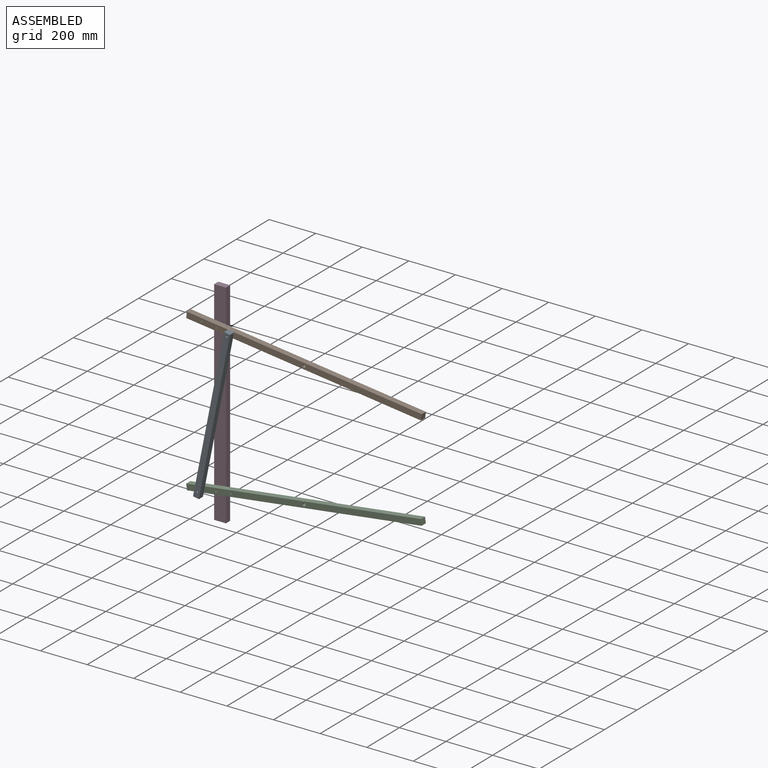
[diagram: assembled view]
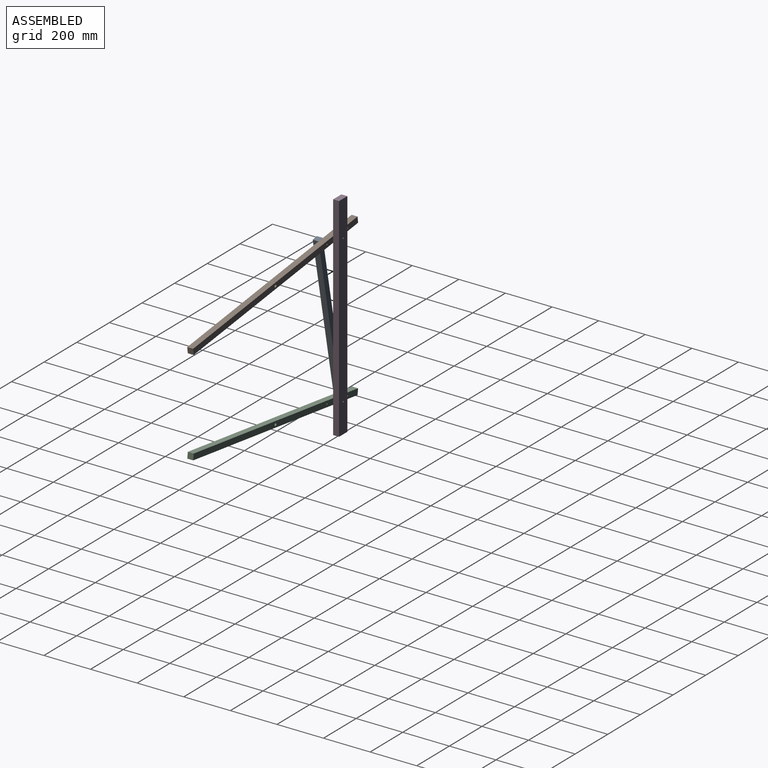
[diagram: assembled view, second angle]
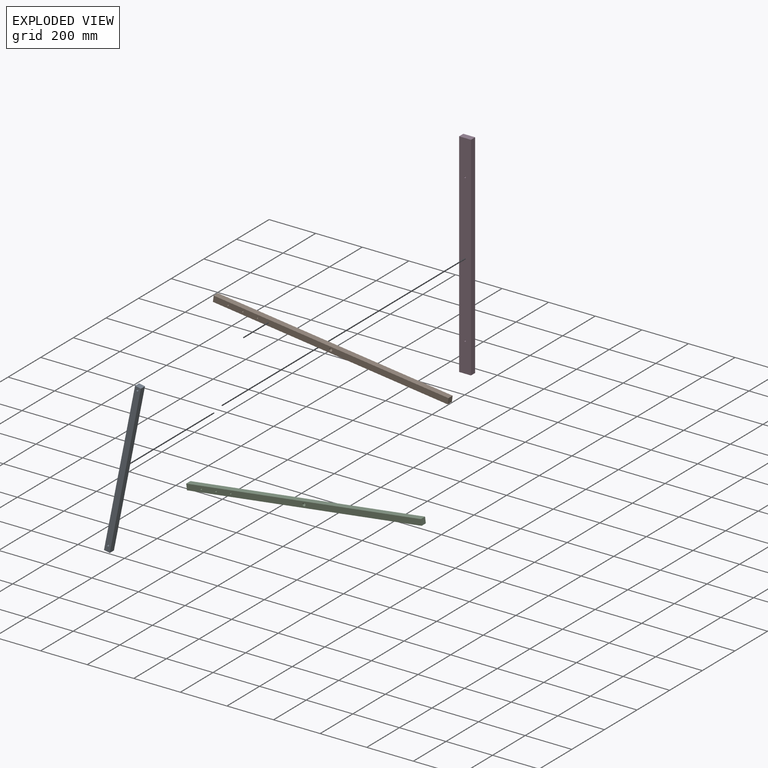
[diagram: exploded view]
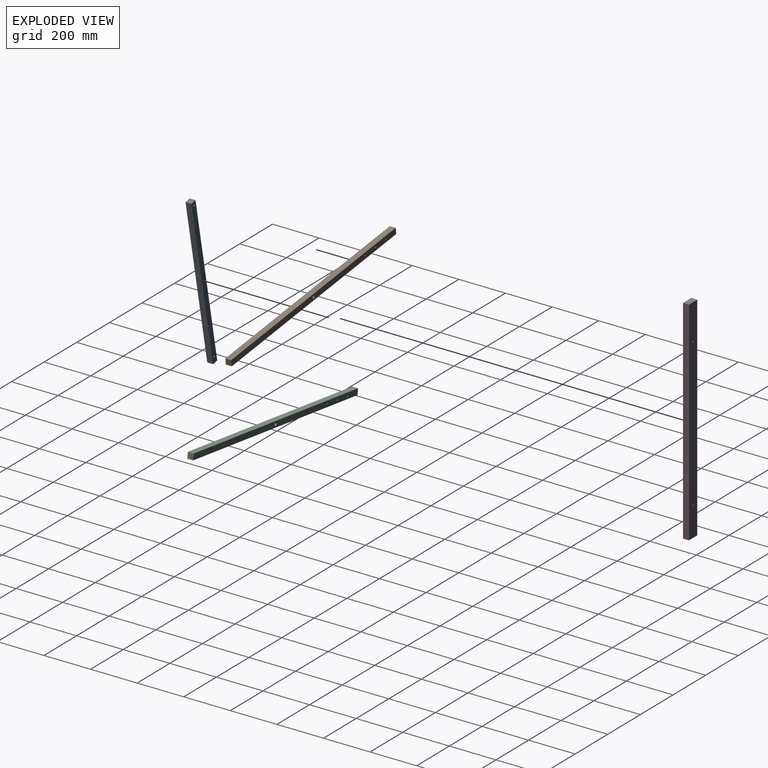
[diagram: exploded view, second angle]
ASSEMBLY  parts=4 mates=4
PART A: 8 faces, bbox 685.8x25.4x25.4 mm
  f0: plane 25.4x25.4mm, normal (-1,0,0), area 645.2mm2, adj f1,f4,f6,f7
  f1: plane 685.8x25.4mm, normal (0,-1,0), area 17419.3mm2, adj f0,f2,f6,f7
  f2: plane 25.4x25.4mm, normal (1,0,0), area 645.2mm2, adj f1,f4,f6,f7
  f3: cylinder r=4.22mm len=25.4mm, axis (0,0,-1), area 673.9mm2, adj f6,f7
  f4: plane 685.8x25.4mm, normal (0,1,0), area 17419.3mm2, adj f0,f2,f6,f7
  f5: cylinder r=4.35mm len=25.4mm, axis (0,0,-1), area 694.5mm2, adj f6,f7
  f6: plane 685.8x25.4mm, normal (0,0,1), area 17303.8mm2, adj f0,f1,f2,f3,f4,f5
  f7: plane 685.8x25.4mm, normal (0,0,-1), area 17303.8mm2, adj f0,f1,f2,f3,f4,f5
PART B: 10 faces, bbox 1016x25.4x25.4 mm
  f0: plane 25.4x25.4mm, normal (-1,0,0), area 645.2mm2, adj f1,f6,f8,f9
  f1: plane 1016x25.4mm, normal (0,-1,0), area 25806.4mm2, adj f0,f2,f8,f9
  f2: plane 25.4x25.4mm, normal (1,0,0), area 645.2mm2, adj f1,f6,f8,f9
  f3: cylinder r=3.17mm len=25.4mm, axis (0,0,-1), area 506.7mm2, adj f8,f9
  f4: cylinder r=3.17mm len=25.4mm, axis (0,0,-1), area 506.7mm2, adj f8,f9
  f5: cylinder r=3.17mm len=25.4mm, axis (0,0,-1), area 506.7mm2, adj f8,f9
  f6: plane 1016x25.4mm, normal (0,1,0), area 25806.4mm2, adj f0,f2,f8,f9
  f7: cylinder r=6.35mm len=25.4mm, axis (0,0,-1), area 1013.4mm2, adj f8,f9
  f8: plane 1016x25.4mm, normal (0,0,1), area 25584.7mm2, adj f0,f1,f2,f3,f4,f5,f6,f7
  f9: plane 1016x25.4mm, normal (0,0,-1), area 25584.7mm2, adj f0,f1,f2,f3,f4,f5,f6,f7
PART C: same geometry as B
PART D: 8 faces, bbox 50.8x25.4x914.4 mm
  f0: plane 914.4x25.4mm, normal (-1,0,0), area 23225.8mm2, adj f1,f3,f4,f5
  f1: plane 914.4x50.8mm, normal (0,-1,0), area 46388.2mm2, adj f0,f2,f4,f5,f6,f7
  f2: plane 914.4x25.4mm, normal (1,0,0), area 23225.8mm2, adj f1,f3,f4,f5
  f3: plane 914.4x50.8mm, normal (0,1,0), area 46388.2mm2, adj f0,f2,f4,f5,f6,f7
  f4: plane 50.8x25.4mm, normal (0,0,1), area 1290.3mm2, adj f0,f1,f2,f3
  f5: plane 50.8x25.4mm, normal (0,0,-1), area 1290.3mm2, adj f0,f1,f2,f3
  f6: cylinder r=3.17mm len=25.4mm, axis (0,-1,0), area 506.7mm2, adj f1,f3
  f7: cylinder r=3.17mm len=25.4mm, axis (0,-1,0), area 506.7mm2, adj f1,f3
PLACE A rot(axis=(0.65,-0.54,0.54),113.7deg) t=(-530.78,-18.76,81.66)mm
PLACE B rot(axis=(1,0.06,-0.06),90.2deg) t=(-602.01,6.64,760.3)mm
PLACE C rot(axis=(1,-0.06,0.06),90.2deg) t=(-598.71,6.64,92.85)mm
PLACE D t=(-499.82,6.64,-5.12)mm fixed
MATE revolute B.f5 <-> D.f6  axis (0,1,0) through (-474.42,6.64,756.88)mm
MATE revolute D.f7 <-> C.f5  axis (0,-1,0) through (-474.42,6.64,121.88)mm
MATE revolute A.f3 <-> C.f4  axis (0,1,0) through (-537.39,-18.76,113.66)mm
MATE revolute B.f3 <-> A.f5  axis (0,-1,0) through (-411.43,-18.76,748.87)mm
